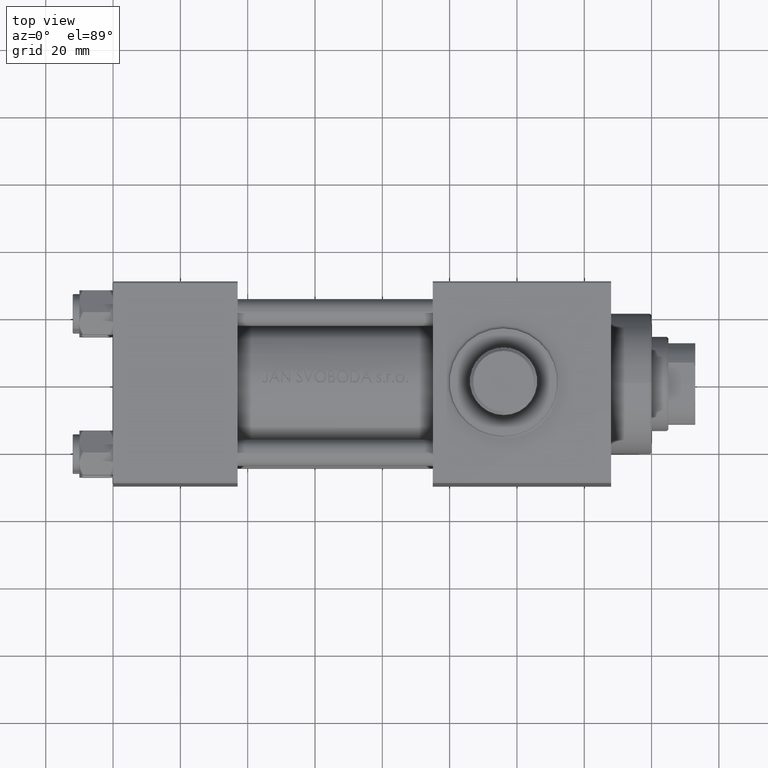
[diagram: clean part render]
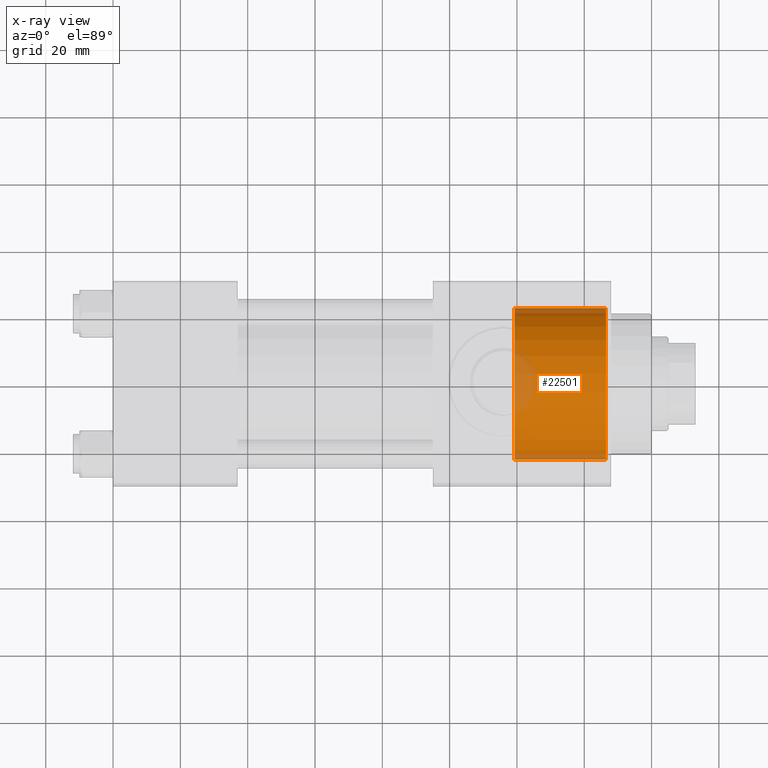
[diagram: x-ray — body ghosted, one internal face saturated and labeled with its STEP entity id]
A machine part, top view, then the same camera in x-ray: the body is ghosted and one INTERNAL B-rep face — a face not visible from any outside direction — is saturated and labeled: STEP entity #22501.
In plain terms, the highlighted cylindrical surface (partial cylindrical patch) has radius 22.5 mm, axis along (1, 0, 0).
Its self-contained STEP definition (entity closure, byte-faithful):
#2692 = EDGE_CURVE ( 'NONE', #28549, #7422, #32853, .T. ) ;
#3343 = DIRECTION ( 'NONE',  ( 0.000000000000000000, 0.000000000000000000, -1.000000000000000000 ) ) ;
#3578 = CARTESIAN_POINT ( 'NONE',  ( 119.2999999999999829, 0.000000000000000000, 0.000000000000000000 ) ) ;
#4074 = CIRCLE ( 'NONE', #38446, 22.50000000000000355 ) ;
#4346 = CARTESIAN_POINT ( 'NONE',  ( 146.5000000000000284, 0.000000000000000000, 0.000000000000000000 ) ) ;
#4470 = EDGE_LOOP ( 'NONE', ( #23665, #26409, #44810, #9916 ) ) ;
#4577 = DIRECTION ( 'NONE',  ( 1.000000000000000000, 0.000000000000000000, 0.000000000000000000 ) ) ;
#6614 = CYLINDRICAL_SURFACE ( 'NONE', #7964, 22.50000000000000355 ) ;
#7422 = VERTEX_POINT ( 'NONE', #26822 ) ;
#7964 = AXIS2_PLACEMENT_3D ( 'NONE', #3578, #39367, #3343 ) ;
#9916 = ORIENTED_EDGE ( 'NONE', *, *, #14753, .F. ) ;
#10470 = CARTESIAN_POINT ( 'NONE',  ( 119.2999999999999829, 0.000000000000000000, -22.50000000000000355 ) ) ;
#10802 = FACE_OUTER_BOUND ( 'NONE', #4470, .T. ) ;
#11814 = EDGE_CURVE ( 'NONE', #33699, #12800, #4074, .T. ) ;
#12800 = VERTEX_POINT ( 'NONE', #10470 ) ;
#14753 = EDGE_CURVE ( 'NONE', #12800, #7422, #45847, .T. ) ;
#15987 = VECTOR ( 'NONE', #35308, 1000.000000000000000 ) ;
#17202 = EDGE_CURVE ( 'NONE', #33699, #28549, #21689, .T. ) ;
#19268 = DIRECTION ( 'NONE',  ( 0.000000000000000000, 0.000000000000000000, 1.000000000000000000 ) ) ;
#21454 = CARTESIAN_POINT ( 'NONE',  ( 119.2999999999999829, 2.755455298081545172E-15, 22.50000000000000355 ) ) ;
#21650 = AXIS2_PLACEMENT_3D ( 'NONE', #4346, #4577, #19268 ) ;
#21689 = LINE ( 'NONE', #21454, #15987 ) ;
#22501 = ADVANCED_FACE ( 'NONE', ( #10802 ), #6614, .F. ) ;
#23372 = CARTESIAN_POINT ( 'NONE',  ( 119.2999999999999829, 2.755455298081545172E-15, 22.50000000000000355 ) ) ;
#23665 = ORIENTED_EDGE ( 'NONE', *, *, #11814, .F. ) ;
#24737 = CARTESIAN_POINT ( 'NONE',  ( 119.2999999999999829, 0.000000000000000000, -22.50000000000000355 ) ) ;
#26409 = ORIENTED_EDGE ( 'NONE', *, *, #17202, .T. ) ;
#26822 = CARTESIAN_POINT ( 'NONE',  ( 146.5000000000000284, 0.000000000000000000, -22.50000000000000355 ) ) ;
#28484 = DIRECTION ( 'NONE',  ( 1.000000000000000000, -0.000000000000000000, -0.000000000000000000 ) ) ;
#28549 = VERTEX_POINT ( 'NONE', #44943 ) ;
#32853 = CIRCLE ( 'NONE', #21650, 22.50000000000000355 ) ;
#33373 = CARTESIAN_POINT ( 'NONE',  ( 119.2999999999999829, 0.000000000000000000, 0.000000000000000000 ) ) ;
#33699 = VERTEX_POINT ( 'NONE', #23372 ) ;
#33981 = VECTOR ( 'NONE', #28484, 1000.000000000000000 ) ;
#35308 = DIRECTION ( 'NONE',  ( 1.000000000000000000, -0.000000000000000000, -0.000000000000000000 ) ) ;
#37355 = DIRECTION ( 'NONE',  ( 0.000000000000000000, 0.000000000000000000, -1.000000000000000000 ) ) ;
#38446 = AXIS2_PLACEMENT_3D ( 'NONE', #33373, #40635, #37355 ) ;
#39367 = DIRECTION ( 'NONE',  ( 1.000000000000000000, -0.000000000000000000, -0.000000000000000000 ) ) ;
#40635 = DIRECTION ( 'NONE',  ( 1.000000000000000000, 0.000000000000000000, 0.000000000000000000 ) ) ;
#44810 = ORIENTED_EDGE ( 'NONE', *, *, #2692, .T. ) ;
#44943 = CARTESIAN_POINT ( 'NONE',  ( 146.5000000000000284, 2.755455298081545172E-15, 22.50000000000000355 ) ) ;
#45847 = LINE ( 'NONE', #24737, #33981 ) ;